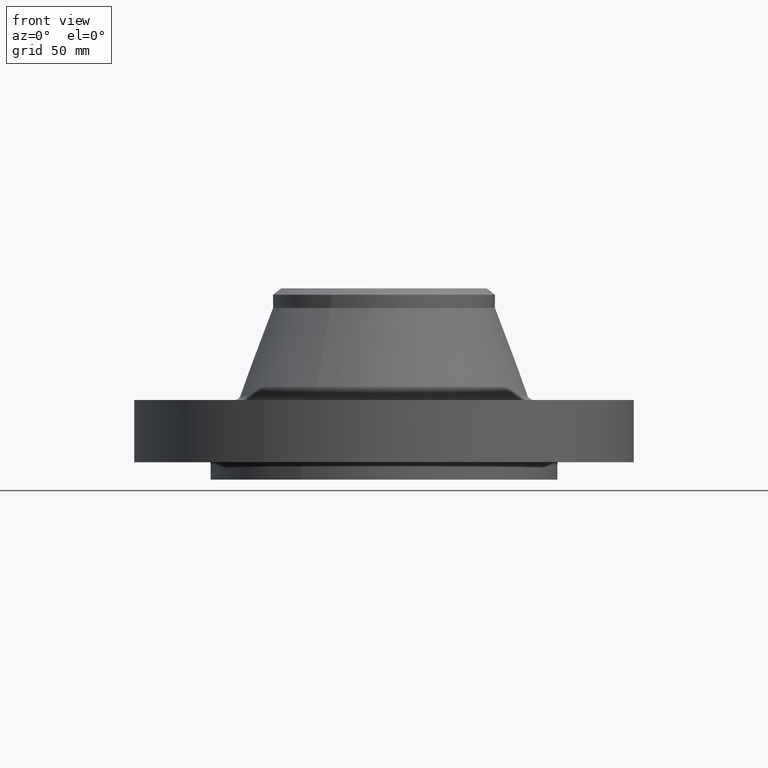
[diagram: clean part render]
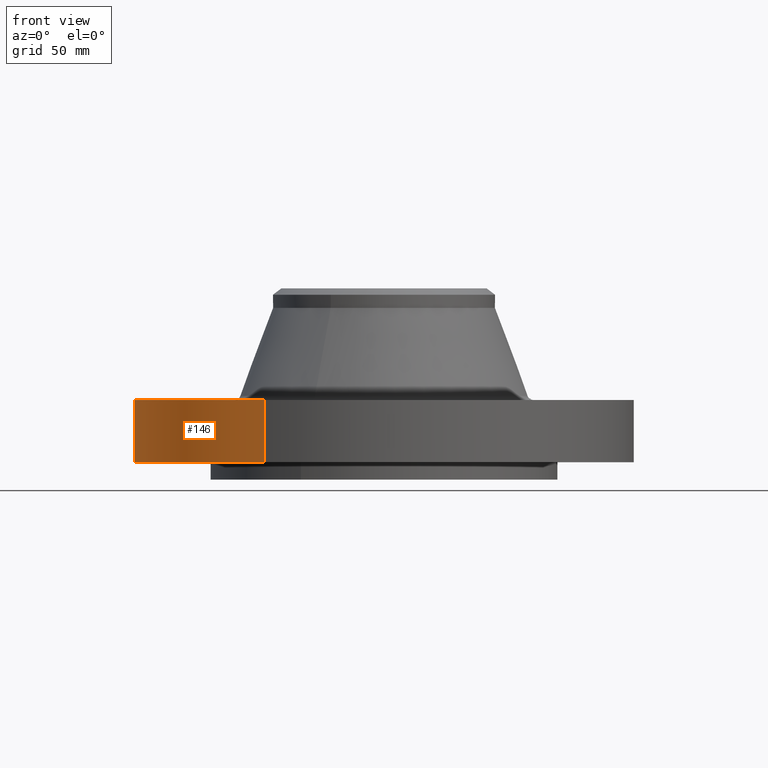
[diagram: same view with one face highlighted and labeled with its STEP entity id]
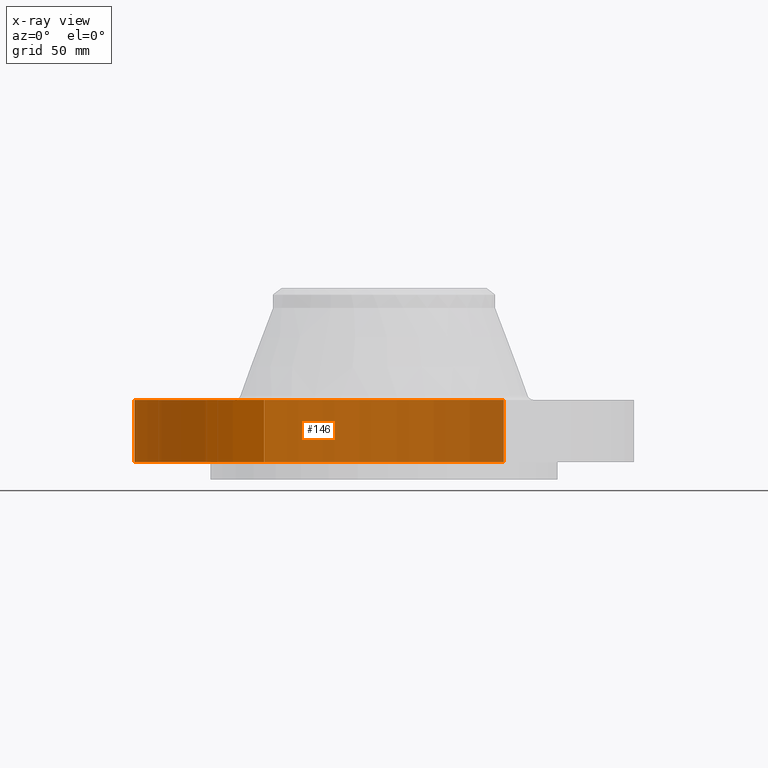
[diagram: x-ray of the same camera — body ghosted, the highlighted face saturated]
A machine part, front view. The second image highlights one B-rep face of the part: STEP entity #146.
The next image is the same camera in x-ray: the body ghosted, the highlighted face saturated — about 65% of this face is hidden behind the body in this view.
In plain terms, the highlighted cylindrical surface (partial cylindrical patch) has radius 114.3 mm, axis along (0, 0, -1).
Its self-contained STEP definition (entity closure, byte-faithful):
#110=AXIS2_PLACEMENT_3D('Cylinder Axis2P3D',#107,#108,#109) ;
#114=AXIS2_PLACEMENT_3D('Circle Axis2P3D',#112,#113,$) ;
#130=AXIS2_PLACEMENT_3D('Circle Axis2P3D',#128,#129,$) ;
#107=CARTESIAN_POINT('Axis2P3D Location',(0.,0.,1.40850000001)) ;
#112=CARTESIAN_POINT('Axis2P3D Location',(0.,0.,2.79741234551E-016)) ;
#116=CARTESIAN_POINT('Vertex',(-2.15741492373,-3.94912152852,2.79741234551E-016)) ;
#118=CARTESIAN_POINT('Vertex',(2.15741492373,3.94912152852,2.79741234551E-016)) ;
#121=CARTESIAN_POINT('Line Origine',(-2.15741492373,-3.94912152852,0.560000000002)) ;
#125=CARTESIAN_POINT('Vertex',(-2.15741492373,-3.94912152852,1.12)) ;
#128=CARTESIAN_POINT('Axis2P3D Location',(0.,0.,1.12)) ;
#132=CARTESIAN_POINT('Vertex',(2.15741492373,3.94912152852,1.12)) ;
#135=CARTESIAN_POINT('Line Origine',(2.15741492373,3.94912152852,0.560000000002)) ;
#108=DIRECTION('Axis2P3D Direction',(0.,0.,-0.0393700787402)) ;
#109=DIRECTION('Axis2P3D XDirection',(0.0188750212049,0.0345504945626,0.)) ;
#113=DIRECTION('Axis2P3D Direction',(0.,0.,-0.0393700787402)) ;
#122=DIRECTION('Vector Direction',(0.,0.,-0.0393700787402)) ;
#129=DIRECTION('Axis2P3D Direction',(0.,0.,-0.0393700787402)) ;
#136=DIRECTION('Vector Direction',(0.,0.,-0.0393700787402)) ;
#123=VECTOR('Line Direction',#122,0.0393700787402) ;
#137=VECTOR('Line Direction',#136,0.0393700787402) ;
#141=ORIENTED_EDGE('',*,*,#120,.F.) ;
#142=ORIENTED_EDGE('',*,*,#127,.T.) ;
#143=ORIENTED_EDGE('',*,*,#134,.T.) ;
#144=ORIENTED_EDGE('',*,*,#139,.F.) ;
#146=ADVANCED_FACE('PartBody',(#145),#111,.T.) ;
#115=CIRCLE('generated circle',#114,4.50000000002) ;
#131=CIRCLE('generated circle',#130,4.50000000002) ;
#111=CYLINDRICAL_SURFACE('generated cylinder',#110,4.50000000002) ;
#120=EDGE_CURVE('',#117,#119,#115,.T.) ;
#127=EDGE_CURVE('',#117,#126,#124,.F.) ;
#134=EDGE_CURVE('',#126,#133,#131,.T.) ;
#139=EDGE_CURVE('',#119,#133,#138,.F.) ;
#140=EDGE_LOOP('',(#141,#142,#143,#144)) ;
#145=FACE_OUTER_BOUND('',#140,.T.) ;
#124=LINE('Line',#121,#123) ;
#138=LINE('Line',#135,#137) ;
#117=VERTEX_POINT('',#116) ;
#119=VERTEX_POINT('',#118) ;
#126=VERTEX_POINT('',#125) ;
#133=VERTEX_POINT('',#132) ;